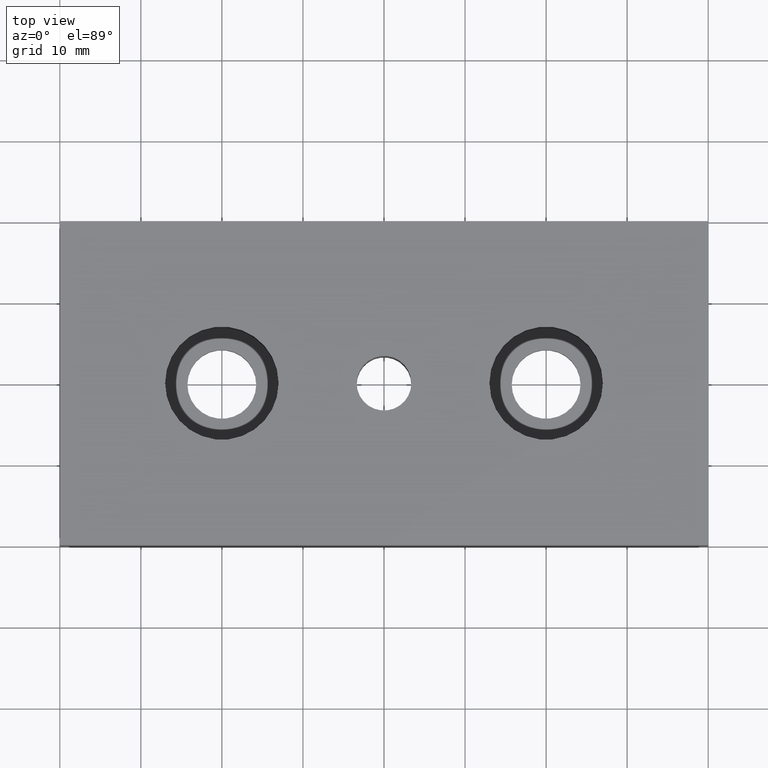
[diagram: clean part render]
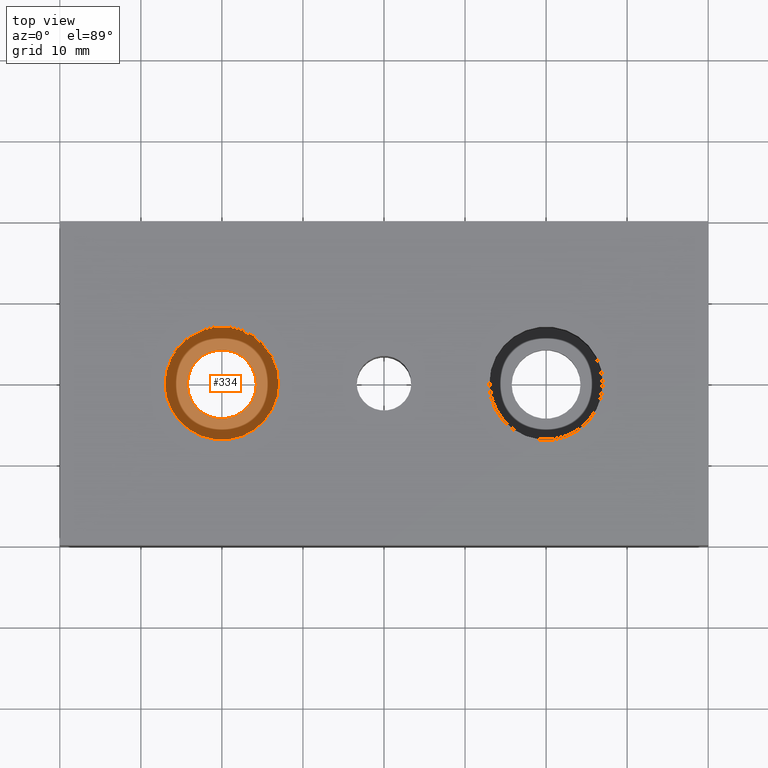
[diagram: same view with one face highlighted and labeled with its STEP entity id]
A machine part, top view. The second image highlights one B-rep face of the part: STEP entity #334.
In plain terms, the highlighted planar face has unit normal (0, 0, -1).
Its self-contained STEP definition (entity closure, byte-faithful):
#275=CARTESIAN_POINT('',(-15.759995560000078,0.000004439999998,3.999999999999998));
#276=VERTEX_POINT('',#275);
#286=CARTESIAN_POINT('',(-24.259995560000078,0.000004439999998,4.0));
#287=VERTEX_POINT('',#286);
#288=CARTESIAN_POINT('',(-20.009995560000078,0.000004439999998,4.0));
#289=DIRECTION('',(0.0,6.123234E-017,1.0));
#290=DIRECTION('',(1.0,0.0,0.0));
#291=AXIS2_PLACEMENT_3D('',#288,#289,#290);
#292=CIRCLE('',#291,4.250000000000000);
#293=EDGE_CURVE('',#276,#287,#292,.T.);
#295=CARTESIAN_POINT('',(-20.009995560000078,0.000004439999998,4.0));
#296=DIRECTION('',(0.0,6.123234E-017,1.0));
#297=DIRECTION('',(1.0,0.0,0.0));
#298=AXIS2_PLACEMENT_3D('',#295,#296,#297);
#299=CIRCLE('',#298,4.250000000000000);
#300=EDGE_CURVE('',#287,#276,#299,.T.);
#305=CARTESIAN_POINT('',(-34.009992452000091,-13.999992452000015,4.000000000000001));
#306=DIRECTION('',(0.0,0.0,-1.0));
#307=DIRECTION('',(0.0,1.0,0.0));
#308=AXIS2_PLACEMENT_3D('',#305,#306,#307);
#309=PLANE('',#308);
#310=CARTESIAN_POINT('',(-13.009997114000072,0.000004439999998,4.0));
#311=VERTEX_POINT('',#310);
#312=CARTESIAN_POINT('',(-27.009994006000085,0.000004439999998,4.0));
#313=VERTEX_POINT('',#312);
#314=CARTESIAN_POINT('',(-20.009995560000078,0.000004439999998,4.0));
#315=DIRECTION('',(0.0,6.123234E-017,1.0));
#316=DIRECTION('',(1.0,0.0,0.0));
#317=AXIS2_PLACEMENT_3D('',#314,#315,#316);
#318=CIRCLE('',#317,6.999998446000006);
#319=EDGE_CURVE('',#311,#313,#318,.T.);
#320=ORIENTED_EDGE('',*,*,#319,.T.);
#321=CARTESIAN_POINT('',(-20.009995560000078,0.000004439999998,4.0));
#322=DIRECTION('',(0.0,6.123234E-017,1.0));
#323=DIRECTION('',(1.0,0.0,0.0));
#324=AXIS2_PLACEMENT_3D('',#321,#322,#323);
#325=CIRCLE('',#324,6.999998446000006);
#326=EDGE_CURVE('',#313,#311,#325,.T.);
#327=ORIENTED_EDGE('',*,*,#326,.T.);
#328=EDGE_LOOP('',(#320,#327));
#329=FACE_OUTER_BOUND('',#328,.T.);
#330=ORIENTED_EDGE('',*,*,#300,.F.);
#331=ORIENTED_EDGE('',*,*,#293,.F.);
#332=EDGE_LOOP('',(#330,#331));
#333=FACE_BOUND('',#332,.T.);
#334=ADVANCED_FACE('',(#329,#333),#309,.F.);